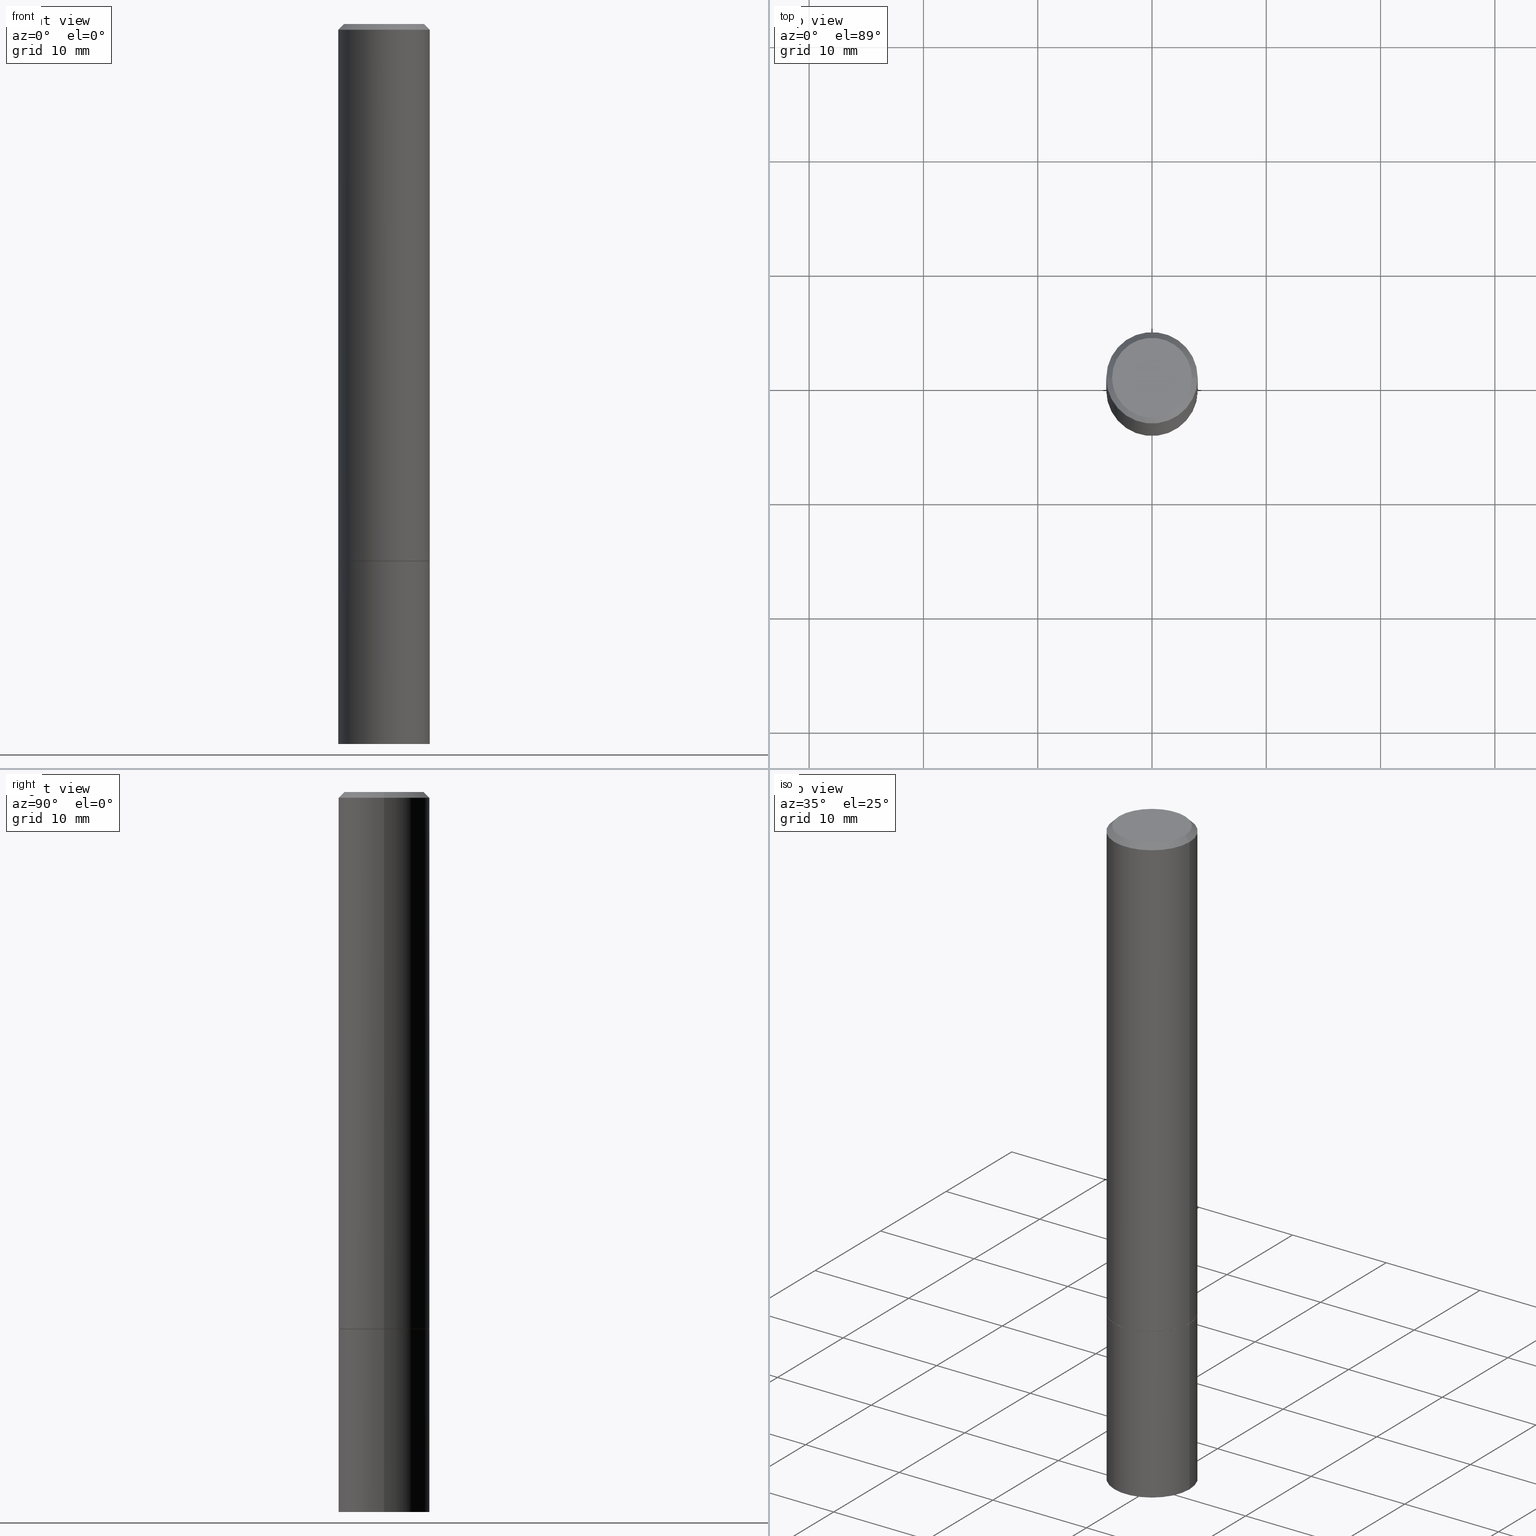
[diagram: canonical four-view strip — front | top / right | iso, engineering-drawing reading convention]
A machine part, canonical four-view strip (front | top / right | iso — engineering-drawing reading convention). The complete STEP part file that produces these views, byte-faithful:
ISO-10303-21;
HEADER;
FILE_DESCRIPTION (( 'STEP AP203' ),
    '1' );
FILE_NAME ('49835.STEP',
    '2024-02-29T01:43:07',
    ( '' ),
    ( '' ),
    'SwSTEP 2.0',
    'SolidWorks 2023',
    '' );
FILE_SCHEMA (( 'CONFIG_CONTROL_DESIGN' ));
ENDSEC;

DATA;
#1 = DATE_AND_TIME ( #147, #324 ) ;
#2 = PRODUCT_RELATED_PRODUCT_CATEGORY ( 'detail', '', ( #148 ) ) ;
#3 = PERSON_AND_ORGANIZATION_ROLE ( 'design_supplier' ) ;
#4 = ORIENTED_EDGE ( 'NONE', *, *, #348, .T. ) ;
#5 = VECTOR ( 'NONE', #64, 39.37007874015748854 ) ;
#6 = CARTESIAN_POINT ( 'NONE',  ( 4.890937612370281041E-31, -6.982962677686302702E-17, -0.02000000000000003511 ) ) ;
#7 = DIRECTION ( 'NONE',  ( -2.445468806185136597E-29, 3.491481338843145583E-15, 1.000000000000000000 ) ) ;
#8 = ORIENTED_EDGE ( 'NONE', *, *, #253, .F. ) ;
#9 = CARTESIAN_POINT ( 'NONE',  ( 6.065496279980994755E-29, -8.659921164732655335E-15, -2.480300000000000171 ) ) ;
#10 = CIRCLE ( 'NONE', #143, 0.1575000000000000011 ) ;
#11 = EDGE_CURVE ( 'NONE', #80, #142, #336, .T. ) ;
#12 = ORGANIZATION ( 'UNSPECIFIED', 'UNSPECIFIED', '' ) ;
#13 = CYLINDRICAL_SURFACE ( 'NONE', #55, 0.1574999999999998901 ) ;
#14 = ORIENTED_EDGE ( 'NONE', *, *, #62, .T. ) ;
#15 = CARTESIAN_POINT ( 'NONE',  ( 0.1574999999999998346, -1.150358061425878091E-15, -0.02000000000000003511 ) ) ;
#16 = DIRECTION ( 'NONE',  ( -2.445468806185136597E-29, 3.491481338843145583E-15, 1.000000000000000000 ) ) ;
#17 = CARTESIAN_POINT ( 'NONE',  ( 0.1574999999999998901, -1.099816621735586297E-15, 7.679978421878593829E-30 ) ) ;
#18 = CARTESIAN_POINT ( 'NONE',  ( -0.1574999999999998346, 1.029986994958722604E-15, -0.02000000000000003511 ) ) ;
#19 = EDGE_LOOP ( 'NONE', ( #67, #227 ) ) ;
#20 = PLANE ( 'NONE',  #112 ) ;
#21 = VECTOR ( 'NONE', #203, 39.37007874015748143 ) ;
#22 = APPROVAL_PERSON_ORGANIZATION ( #114, #286, #26 ) ;
#23 = ORIENTED_EDGE ( 'NONE', *, *, #316, .T. ) ;
#24 = AXIS2_PLACEMENT_3D ( 'NONE', #104, #16, #271 ) ;
#25 = ADVANCED_FACE ( 'NONE', ( #198 ), #333, .T. ) ;
#26 = APPROVAL_ROLE ( '' ) ;
#27 = CIRCLE ( 'NONE', #313, 0.1575000000000000011 ) ;
#28 = LOCAL_TIME ( 20, 43, 7.000000000000000000, #171 ) ;
#29 = CARTESIAN_POINT ( 'NONE',  ( 1.099816621735647434E-15, 0.1574999999999913136, -2.480300000000001059 ) ) ;
#30 = DIRECTION ( 'NONE',  ( -2.445468806185136597E-29, 3.491481338843145583E-15, 1.000000000000000000 ) ) ;
#31 = CC_DESIGN_PERSON_AND_ORGANIZATION_ASSIGNMENT ( #196, #308, ( #81 ) ) ;
#32 = VERTEX_POINT ( 'NONE', #229 ) ;
#33 = PERSON ( 'UNSPECIFIED', 'UNSPECIFIED', 'UNSPECIFIED', ('UNSPECIFIED'), ('UNSPECIFIED'), ('UNSPECIFIED') ) ;
#34 = DIRECTION ( 'NONE',  ( -2.445468806185136597E-29, 3.491481338843145583E-15, 1.000000000000000000 ) ) ;
#35 = ORIENTED_EDGE ( 'NONE', *, *, #46, .F. ) ;
#36 = AXIS2_PLACEMENT_3D ( 'NONE', #356, #214, #194 ) ;
#37 = CARTESIAN_POINT ( 'NONE',  ( 4.525095478964977394E-29, -6.460637069395357576E-15, -1.850400000000000267 ) ) ;
#38 = ORIENTED_EDGE ( 'NONE', *, *, #235, .T. ) ;
#39 = ADVANCED_FACE ( 'NONE', ( #290 ), #179, .T. ) ;
#40 = CARTESIAN_POINT ( 'NONE',  ( 0.000000000000000000, 0.000000000000000000, 0.000000000000000000 ) ) ;
#41 = EDGE_LOOP ( 'NONE', ( #161, #297, #130, #119 ) ) ;
#42 = CARTESIAN_POINT ( 'NONE',  ( 0.000000000000000000, 0.000000000000000000, 0.000000000000000000 ) ) ;
#43 = CIRCLE ( 'NONE', #36, 0.1374999999999997891 ) ;
#44 = LOCAL_TIME ( 20, 43, 7.000000000000000000, #172 ) ;
#45 = DIRECTION ( 'NONE',  ( 1.000000000000000000, -6.982962677686265922E-15, 4.876176775795935232E-29 ) ) ;
#46 = EDGE_CURVE ( 'NONE', #100, #232, #320, .T. ) ;
#47 = DIRECTION ( 'NONE',  ( 1.000000000000000000, -6.982962677686266711E-15, 4.876176775795935793E-29 ) ) ;
#48 = DIRECTION ( 'NONE',  ( 1.000000000000000000, -6.982962677686267499E-15, 0.000000000000000000 ) ) ;
#49 = CLOSED_SHELL ( 'NONE', ( #224, #66, #311, #25 ) ) ;
#50 = AXIS2_PLACEMENT_3D ( 'NONE', #223, #144, #248 ) ;
#51 = PERSON_AND_ORGANIZATION_ROLE ( 'design_owner' ) ;
#52 = CC_DESIGN_PERSON_AND_ORGANIZATION_ASSIGNMENT ( #84, #3, ( #285 ) ) ;
#53 = PERSON_AND_ORGANIZATION ( #33, #12 ) ;
#54 = SECURITY_CLASSIFICATION_LEVEL ( 'unclassified' ) ;
#55 = AXIS2_PLACEMENT_3D ( 'NONE', #233, #351, #47 ) ;
#56 = COORDINATED_UNIVERSAL_TIME_OFFSET ( 5, 0, .BEHIND. ) ;
#57 = EDGE_CURVE ( 'NONE', #315, #289, #288, .T. ) ;
#58 = APPLICATION_PROTOCOL_DEFINITION ( 'international standard', 'config_control_design', 1994, #266 ) ;
#59 = SHAPE_DEFINITION_REPRESENTATION ( #258, #334 ) ;
#60 = AXIS2_PLACEMENT_3D ( 'NONE', #273, #328, #300 ) ;
#61 = DIRECTION ( 'NONE',  ( 1.000000000000000000, -6.982962677686265922E-15, 0.000000000000000000 ) ) ;
#62 = EDGE_CURVE ( 'NONE', #234, #70, #343, .T. ) ;
#63 = FACE_OUTER_BOUND ( 'NONE', #264, .T. ) ;
#64 = DIRECTION ( 'NONE',  ( 0.7071067811865232589, -2.468850131082003836E-15, 0.7071067811865715536 ) ) ;
#65 = DIRECTION ( 'NONE',  ( -1.000000000000000000, 6.982962677686265922E-15, -4.876176775795935793E-29 ) ) ;
#66 = ADVANCED_FACE ( 'NONE', ( #152 ), #126, .T. ) ;
#67 = ORIENTED_EDGE ( 'NONE', *, *, #128, .F. ) ;
#68 = CIRCLE ( 'NONE', #256, 0.1574999999999998346 ) ;
#69 = DIRECTION ( 'NONE',  ( 2.445468806185136597E-29, -3.491481338843145583E-15, -1.000000000000000000 ) ) ;
#70 = VERTEX_POINT ( 'NONE', #236 ) ;
#71 = CARTESIAN_POINT ( 'NONE',  ( 1.099816621735631854E-15, 0.1574999999999935341, -1.850400000000000489 ) ) ;
#72 = ORIENTED_EDGE ( 'NONE', *, *, #316, .F. ) ;
#73 = CARTESIAN_POINT ( 'NONE',  ( -0.1374999999999997891, 9.950721815702915469E-16, 4.268512490093574228E-18 ) ) ;
#74 = ORIENTED_EDGE ( 'NONE', *, *, #276, .F. ) ;
#75 = ADVANCED_FACE ( 'NONE', ( #352 ), #150, .T. ) ;
#76 = FACE_OUTER_BOUND ( 'NONE', #302, .T. ) ;
#77 = CARTESIAN_POINT ( 'NONE',  ( 0.1374999999999997891, -1.046838268059731308E-15, 4.268512490107428597E-18 ) ) ;
#78 = ORIENTED_EDGE ( 'NONE', *, *, #276, .T. ) ;
#79 = DIRECTION ( 'NONE',  ( 2.438088387897960049E-29, -3.491481338843145188E-15, -1.000000000000000000 ) ) ;
#80 = VERTEX_POINT ( 'NONE', #153 ) ;
#81 = PRODUCT_DEFINITION ( 'UNKNOWN', '', #285, #85 ) ;
#82 = AXIS2_PLACEMENT_3D ( 'NONE', #6, #120, #61 ) ;
#83 = AXIS2_PLACEMENT_3D ( 'NONE', #71, #103, #160 ) ;
#84 = PERSON_AND_ORGANIZATION ( #33, #12 ) ;
#85 = DESIGN_CONTEXT ( 'detailed design', #277, 'design' ) ;
#86 = DATE_TIME_ROLE ( 'creation_date' ) ;
#87 = CARTESIAN_POINT ( 'NONE',  ( -0.1574999999999998901, 1.119104808822157012E-15, -7.747322767151471379E-30 ) ) ;
#88 = VERTEX_POINT ( 'NONE', #158 ) ;
#89 = CIRCLE ( 'NONE', #82, 0.1574999999999998346 ) ;
#90 = CALENDAR_DATE ( 2024, 28, 2 ) ;
#91 = CARTESIAN_POINT ( 'NONE',  ( 0.000000000000000000, 0.000000000000000000, 0.000000000000000000 ) ) ;
#92 = DIRECTION ( 'NONE',  ( 1.000000000000000000, -6.982962677686261977E-15, 0.000000000000000000 ) ) ;
#93 = DIRECTION ( 'NONE',  ( -2.445468806185136877E-29, 3.491481338843145188E-15, 1.000000000000000000 ) ) ;
#94 = AXIS2_PLACEMENT_3D ( 'NONE', #323, #244, #107 ) ;
#95 = DIRECTION ( 'NONE',  ( 1.000000000000000000, -6.982962677686265922E-15, 4.876176775795935793E-29 ) ) ;
#96 = ORIENTED_EDGE ( 'NONE', *, *, #253, .T. ) ;
#97 = DIRECTION ( 'NONE',  ( -2.445468806185136597E-29, 3.491481338843145583E-15, 1.000000000000000000 ) ) ;
#98 = ORIENTED_EDGE ( 'NONE', *, *, #304, .F. ) ;
#99 = CARTESIAN_POINT ( 'NONE',  ( 0.1565000000000000002, -7.553470728453258253E-15, -1.850400000000000267 ) ) ;
#100 = VERTEX_POINT ( 'NONE', #99 ) ;
#101 = AXIS2_PLACEMENT_3D ( 'NONE', #91, #280, #145 ) ;
#102 =( CONVERSION_BASED_UNIT ( 'INCH', #109 ) LENGTH_UNIT ( ) NAMED_UNIT ( #115 ) );
#103 = DIRECTION ( 'NONE',  ( 2.438088387897960049E-29, -3.491481338843145188E-15, -1.000000000000000000 ) ) ;
#104 = CARTESIAN_POINT ( 'NONE',  ( 4.525095478964977394E-29, -6.460637069395357576E-15, -1.850400000000000267 ) ) ;
#105 = ORIENTED_EDGE ( 'NONE', *, *, #128, .T. ) ;
#106 = VECTOR ( 'NONE', #215, 39.37007874015748854 ) ;
#107 = DIRECTION ( 'NONE',  ( 1.000000000000000000, -6.982962677686268288E-15, 0.000000000000000000 ) ) ;
#108 = EDGE_LOOP ( 'NONE', ( #212, #23 ) ) ;
#109 = LENGTH_MEASURE_WITH_UNIT ( LENGTH_MEASURE( 0.02539999999999999897 ), #274 );
#110 = ADVANCED_FACE ( 'NONE', ( #210 ), #344, .T. ) ;
#111 = PERSON_AND_ORGANIZATION ( #33, #12 ) ;
#112 = AXIS2_PLACEMENT_3D ( 'NONE', #135, #79, #357 ) ;
#113 = APPROVAL_STATUS ( 'not_yet_approved' ) ;
#114 = PERSON_AND_ORGANIZATION ( #33, #12 ) ;
#115 = DIMENSIONAL_EXPONENTS ( 1.000000000000000000, 0.000000000000000000, 0.000000000000000000, 0.000000000000000000, 0.000000000000000000, 0.000000000000000000, 0.000000000000000000 ) ;
#116 = COORDINATED_UNIVERSAL_TIME_OFFSET ( 5, 0, .BEHIND. ) ;
#117 = AXIS2_PLACEMENT_3D ( 'NONE', #29, #228, #65 ) ;
#118 = PERSON_AND_ORGANIZATION ( #33, #12 ) ;
#119 = ORIENTED_EDGE ( 'NONE', *, *, #178, .F. ) ;
#120 = DIRECTION ( 'NONE',  ( -2.445468806185136597E-29, 3.491481338843145583E-15, 1.000000000000000000 ) ) ;
#121 = CC_DESIGN_PERSON_AND_ORGANIZATION_ASSIGNMENT ( #118, #51, ( #148 ) ) ;
#122 = APPROVAL_DATE_TIME ( #199, #286 ) ;
#123 = LINE ( 'NONE', #207, #360 ) ;
#124 = ORIENTED_EDGE ( 'NONE', *, *, #167, .T. ) ;
#125 = AXIS2_PLACEMENT_3D ( 'NONE', #131, #69, #318 ) ;
#126 = PLANE ( 'NONE',  #117 ) ;
#127 = ORIENTED_EDGE ( 'NONE', *, *, #11, .T. ) ;
#128 = EDGE_CURVE ( 'NONE', #32, #315, #10, .T. ) ;
#129 = CARTESIAN_POINT ( 'NONE',  ( 4.525095478964976833E-29, -6.460637069395356787E-15, -1.850400000000000045 ) ) ;
#130 = ORIENTED_EDGE ( 'NONE', *, *, #309, .T. ) ;
#131 = CARTESIAN_POINT ( 'NONE',  ( 4.890937612370281041E-31, -6.982962677686302702E-17, -0.02000000000000003511 ) ) ;
#132 = CARTESIAN_POINT ( 'NONE',  ( -0.1575000000000000011, -6.441174308241848063E-15, -1.850400000000000267 ) ) ;
#133 = FACE_OUTER_BOUND ( 'NONE', #237, .T. ) ;
#134 = EDGE_CURVE ( 'NONE', #32, #88, #123, .T. ) ;
#135 = CARTESIAN_POINT ( 'NONE',  ( 9.601573681818600950E-16, 0.1374999999999997891, -4.779444278458816091E-16 ) ) ;
#136 = ORIENTED_EDGE ( 'NONE', *, *, #348, .F. ) ;
#137 = DIRECTION ( 'NONE',  ( -2.445468806185136597E-29, 3.491481338843145583E-15, 1.000000000000000000 ) ) ;
#138 = CLOSED_SHELL ( 'NONE', ( #327, #110, #39, #211, #200, #75, #149, #249 ) ) ;
#139 = APPROVAL_PERSON_ORGANIZATION ( #111, #359, #220 ) ;
#140 = CC_DESIGN_PERSON_AND_ORGANIZATION_ASSIGNMENT ( #53, #338, ( #169 ) ) ;
#141 = LINE ( 'NONE', #189, #106 ) ;
#142 = VERTEX_POINT ( 'NONE', #292 ) ;
#143 = AXIS2_PLACEMENT_3D ( 'NONE', #9, #7, #92 ) ;
#144 = DIRECTION ( 'NONE',  ( 0.000000000000000000, 0.000000000000000000, 1.000000000000000000 ) ) ;
#145 = DIRECTION ( 'NONE',  ( 1.000000000000000000, -6.982962677686265922E-15, 4.876176775795935232E-29 ) ) ;
#146 = EDGE_CURVE ( 'NONE', #100, #159, #314, .T. ) ;
#147 = CALENDAR_DATE ( 2024, 28, 2 ) ;
#148 = PRODUCT ( '49835', '49835', '', ( #255 ) ) ;
#149 = ADVANCED_FACE ( 'NONE', ( #63 ), #267, .F. ) ;
#150 = CONICAL_SURFACE ( 'NONE', #168, 0.1565000000000000002, 0.7853981633974141952 ) ;
#151 = LOCAL_TIME ( 20, 43, 7.000000000000000000, #56 ) ;
#152 = FACE_OUTER_BOUND ( 'NONE', #19, .T. ) ;
#153 = CARTESIAN_POINT ( 'NONE',  ( -0.1575000000000000011, -2.144382798594528569E-15, -1.849400000000000155 ) ) ;
#154 = ORIENTED_EDGE ( 'NONE', *, *, #205, .F. ) ;
#155 = VECTOR ( 'NONE', #349, 39.37007874015748143 ) ;
#156 = FACE_OUTER_BOUND ( 'NONE', #41, .T. ) ;
#157 = ORIENTED_EDGE ( 'NONE', *, *, #167, .F. ) ;
#158 = CARTESIAN_POINT ( 'NONE',  ( 0.1575000000000000011, -7.560453691130944267E-15, -1.850400000000000267 ) ) ;
#159 = VERTEX_POINT ( 'NONE', #206 ) ;
#160 = DIRECTION ( 'NONE',  ( -1.000000000000000000, 6.982962677686265922E-15, -4.876176775795935793E-29 ) ) ;
#161 = ORIENTED_EDGE ( 'NONE', *, *, #11, .F. ) ;
#162 = LINE ( 'NONE', #18, #261 ) ;
#163 = AXIS2_PLACEMENT_3D ( 'NONE', #42, #269, #45 ) ;
#164 = DIRECTION ( 'NONE',  ( -0.7071067811865472397, 2.468850131082253905E-15, -0.7071067811865477948 ) ) ;
#165 = DIRECTION ( 'NONE',  ( -2.445468806185136597E-29, 3.491481338843145583E-15, 1.000000000000000000 ) ) ;
#166 = ORIENTED_EDGE ( 'NONE', *, *, #309, .F. ) ;
#167 = EDGE_CURVE ( 'NONE', #70, #142, #68, .T. ) ;
#168 = AXIS2_PLACEMENT_3D ( 'NONE', #37, #30, #185 ) ;
#169 = SECURITY_CLASSIFICATION ( '', '', #54 ) ;
#170 = UNCERTAINTY_MEASURE_WITH_UNIT (LENGTH_MEASURE( 1.000000000000000082E-05 ), #102, 'distance_accuracy_value', 'NONE');
#171 = COORDINATED_UNIVERSAL_TIME_OFFSET ( 5, 0, .BEHIND. ) ;
#172 = COORDINATED_UNIVERSAL_TIME_OFFSET ( 5, 0, .BEHIND. ) ;
#173 = DATE_AND_TIME ( #90, #44 ) ;
#174 = EDGE_CURVE ( 'NONE', #88, #289, #346, .T. ) ;
#175 = VECTOR ( 'NONE', #365, 39.37007874015748143 ) ;
#176 = CALENDAR_DATE ( 2024, 28, 2 ) ;
#177 = PERSON_AND_ORGANIZATION ( #33, #12 ) ;
#178 = EDGE_CURVE ( 'NONE', #142, #70, #89, .T. ) ;
#179 = CONICAL_SURFACE ( 'NONE', #125, 0.1574999999999998346, 0.7853981633974479459 ) ;
#180 = CARTESIAN_POINT ( 'NONE',  ( 4.525095478964977394E-29, -6.460637069395357576E-15, -1.850400000000000267 ) ) ;
#181 = CARTESIAN_POINT ( 'NONE',  ( 4.890937612370281041E-31, -6.982962677686302702E-17, -0.02000000000000003511 ) ) ;
#182 = ORIENTED_EDGE ( 'NONE', *, *, #174, .F. ) ;
#183 = DIRECTION ( 'NONE',  ( 1.000000000000000000, -6.982962677686268288E-15, 0.000000000000000000 ) ) ;
#184 = AXIS2_PLACEMENT_3D ( 'NONE', #303, #192, #48 ) ;
#185 = DIRECTION ( 'NONE',  ( 1.000000000000000000, -6.982962677686267499E-15, 0.000000000000000000 ) ) ;
#186 = APPROVAL_PERSON_ORGANIZATION ( #306, #265, #225 ) ;
#187 = CARTESIAN_POINT ( 'NONE',  ( 4.525095478964977394E-29, -6.460637069395357576E-15, -1.850400000000000267 ) ) ;
#188 = CC_DESIGN_DATE_AND_TIME_ASSIGNMENT ( #1, #86, ( #81 ) ) ;
#189 = CARTESIAN_POINT ( 'NONE',  ( -0.1565000000000000002, -5.348637687930800981E-15, -1.850400000000000267 ) ) ;
#190 = ORIENTED_EDGE ( 'NONE', *, *, #146, .T. ) ;
#191 = ORIENTED_EDGE ( 'NONE', *, *, #193, .F. ) ;
#192 = DIRECTION ( 'NONE',  ( -2.445468806185136597E-29, 3.491481338843145583E-15, 1.000000000000000000 ) ) ;
#193 = EDGE_CURVE ( 'NONE', #289, #88, #27, .T. ) ;
#194 = DIRECTION ( 'NONE',  ( 1.000000000000000000, -6.982962677686267499E-15, 4.876173381029107889E-29 ) ) ;
#195 = DIRECTION ( 'NONE',  ( 1.000000000000000000, -6.982962677686267499E-15, 4.876173381029107889E-29 ) ) ;
#196 = PERSON_AND_ORGANIZATION ( #33, #12 ) ;
#197 = APPROVAL_STATUS ( 'not_yet_approved' ) ;
#198 = FACE_OUTER_BOUND ( 'NONE', #204, .T. ) ;
#199 = DATE_AND_TIME ( #176, #151 ) ;
#200 = ADVANCED_FACE ( 'NONE', ( #156 ), #13, .T. ) ;
#201 = DIRECTION ( 'NONE',  ( 1.000000000000000000, -6.982962677686267499E-15, 0.000000000000000000 ) ) ;
#202 = CIRCLE ( 'NONE', #230, 0.1374999999999997891 ) ;
#203 = DIRECTION ( 'NONE',  ( 0.7071067811865472397, -7.319954787623254468E-15, -0.7071067811865477948 ) ) ;
#204 = EDGE_LOOP ( 'NONE', ( #250, #358, #268, #191 ) ) ;
#205 = EDGE_CURVE ( 'NONE', #80, #159, #339, .T. ) ;
#206 = CARTESIAN_POINT ( 'NONE',  ( 0.1575000000000000011, -7.556962209792101260E-15, -1.849400000000000155 ) ) ;
#207 = CARTESIAN_POINT ( 'NONE',  ( 0.1575000000000000011, -1.099816621735586889E-15, 7.679978421878598033E-30 ) ) ;
#208 = ORIENTED_EDGE ( 'NONE', *, *, #134, .F. ) ;
#209 = AXIS2_PLACEMENT_3D ( 'NONE', #312, #317, #183 ) ;
#210 = FACE_OUTER_BOUND ( 'NONE', #243, .T. ) ;
#211 = ADVANCED_FACE ( 'NONE', ( #322 ), #221, .T. ) ;
#212 = ORIENTED_EDGE ( 'NONE', *, *, #304, .T. ) ;
#213 = CARTESIAN_POINT ( 'NONE',  ( -1.043851414335219820E-46, 1.490343170380447200E-32, 4.268512490100411279E-18 ) ) ;
#214 = DIRECTION ( 'NONE',  ( -2.445468806185136597E-29, 3.491481338843145583E-15, 1.000000000000000000 ) ) ;
#215 = DIRECTION ( 'NONE',  ( -0.7071067811865232589, 7.493145998870265808E-15, 0.7071067811865715536 ) ) ;
#216 = LOCAL_TIME ( 20, 43, 7.000000000000000000, #331 ) ;
#217 = FACE_OUTER_BOUND ( 'NONE', #305, .T. ) ;
#218 = DIRECTION ( 'NONE',  ( -2.445468806185136597E-29, 3.491481338843145583E-15, 1.000000000000000000 ) ) ;
#219 = ORIENTED_EDGE ( 'NONE', *, *, #57, .T. ) ;
#220 = APPROVAL_ROLE ( '' ) ;
#221 = CONICAL_SURFACE ( 'NONE', #60, 0.1574999999999998346, 0.7853981633974479459 ) ;
#222 = CALENDAR_DATE ( 2024, 28, 2 ) ;
#223 = CARTESIAN_POINT ( 'NONE',  ( 0.000000000000000000, 0.000000000000000000, 0.000000000000000000 ) ) ;
#224 = ADVANCED_FACE ( 'NONE', ( #217 ), #326, .T. ) ;
#225 = APPROVAL_ROLE ( '' ) ;
#226 = DATE_AND_TIME ( #283, #216 ) ;
#227 = ORIENTED_EDGE ( 'NONE', *, *, #341, .F. ) ;
#228 = DIRECTION ( 'NONE',  ( 2.438088387897960049E-29, -3.491481338843145188E-15, -1.000000000000000000 ) ) ;
#229 = CARTESIAN_POINT ( 'NONE',  ( 0.1575000000000000011, -9.759737786468242027E-15, -2.480300000000000171 ) ) ;
#230 = AXIS2_PLACEMENT_3D ( 'NONE', #213, #137, #195 ) ;
#231 = DIRECTION ( 'NONE',  ( -2.438088387897960049E-29, 3.491481338843145188E-15, 1.000000000000000000 ) ) ;
#232 = VERTEX_POINT ( 'NONE', #296 ) ;
#233 = CARTESIAN_POINT ( 'NONE',  ( 0.000000000000000000, 0.000000000000000000, 0.000000000000000000 ) ) ;
#234 = VERTEX_POINT ( 'NONE', #77 ) ;
#235 = EDGE_CURVE ( 'NONE', #353, #142, #162, .T. ) ;
#236 = CARTESIAN_POINT ( 'NONE',  ( 0.1574999999999998346, -1.150358061425878091E-15, -0.02000000000000003511 ) ) ;
#237 = EDGE_LOOP ( 'NONE', ( #340, #350 ) ) ;
#238 = CONICAL_SURFACE ( 'NONE', #184, 0.1565000000000000002, 0.7853981633974141952 ) ;
#239 = VECTOR ( 'NONE', #240, 39.37007874015748143 ) ;
#240 = DIRECTION ( 'NONE',  ( -2.445468806185136877E-29, 3.491481338843145188E-15, 1.000000000000000000 ) ) ;
#241 = CARTESIAN_POINT ( 'NONE',  ( -0.1575000000000000011, -6.441174308241848063E-15, -2.480300000000000171 ) ) ;
#242 = DIRECTION ( 'NONE',  ( 1.000000000000000000, -6.982962677686268288E-15, 0.000000000000000000 ) ) ;
#243 = EDGE_LOOP ( 'NONE', ( #4, #127, #157, #166 ) ) ;
#244 = DIRECTION ( 'NONE',  ( -2.445468806185136597E-29, 3.491481338843145583E-15, 1.000000000000000000 ) ) ;
#245 = CIRCLE ( 'NONE', #275, 0.1575000000000000011 ) ;
#246 = CC_DESIGN_APPROVAL ( #359, ( #81 ) ) ;
#247 = DIRECTION ( 'NONE',  ( 1.000000000000000000, -6.982962677686261977E-15, 0.000000000000000000 ) ) ;
#248 = DIRECTION ( 'NONE',  ( 1.000000000000000000, 0.000000000000000000, 0.000000000000000000 ) ) ;
#249 = ADVANCED_FACE ( 'NONE', ( #361 ), #20, .F. ) ;
#250 = ORIENTED_EDGE ( 'NONE', *, *, #57, .F. ) ;
#251 =( NAMED_UNIT ( * ) SI_UNIT ( $, .STERADIAN. ) SOLID_ANGLE_UNIT ( ) );
#252 = CC_DESIGN_SECURITY_CLASSIFICATION ( #169, ( #285 ) ) ;
#253 = EDGE_CURVE ( 'NONE', #232, #100, #284, .T. ) ;
#254 = APPLICATION_PROTOCOL_DEFINITION ( 'international standard', 'config_control_design', 1994, #277 ) ;
#255 = MECHANICAL_CONTEXT ( 'NONE', #266, 'mechanical' ) ;
#256 = AXIS2_PLACEMENT_3D ( 'NONE', #181, #257, #321 ) ;
#257 = DIRECTION ( 'NONE',  ( -2.445468806185136597E-29, 3.491481338843145583E-15, 1.000000000000000000 ) ) ;
#258 = PRODUCT_DEFINITION_SHAPE ( 'NONE', 'NONE',  #81 ) ;
#259 = DIRECTION ( 'NONE',  ( -2.445468806185136597E-29, 3.491481338843145583E-15, 1.000000000000000000 ) ) ;
#260 = DIRECTION ( 'NONE',  ( 1.000000000000000000, -6.982962677686266711E-15, 4.876176775795935793E-29 ) ) ;
#261 = VECTOR ( 'NONE', #164, 39.37007874015748143 ) ;
#262 = CC_DESIGN_APPROVAL ( #265, ( #285 ) ) ;
#263 = CARTESIAN_POINT ( 'NONE',  ( 0.1565000000000000002, -7.553470728453258253E-15, -1.850400000000000267 ) ) ;
#264 = EDGE_LOOP ( 'NONE', ( #35, #8 ) ) ;
#265 = APPROVAL ( #278, 'UNSPECIFIED' ) ;
#266 = APPLICATION_CONTEXT ( 'configuration controlled 3d designs of mechanical parts and assemblies' ) ;
#267 = PLANE ( 'NONE',  #330 ) ;
#268 = ORIENTED_EDGE ( 'NONE', *, *, #134, .T. ) ;
#269 = DIRECTION ( 'NONE',  ( -2.445468806185136597E-29, 3.491481338843145583E-15, 1.000000000000000000 ) ) ;
#270 = AXIS2_PLACEMENT_3D ( 'NONE', #272, #218, #242 ) ;
#271 = DIRECTION ( 'NONE',  ( 1.000000000000000000, -6.982962677686267499E-15, 0.000000000000000000 ) ) ;
#272 = CARTESIAN_POINT ( 'NONE',  ( 4.522650010158792351E-29, -6.457145588056513780E-15, -1.849400000000000155 ) ) ;
#273 = CARTESIAN_POINT ( 'NONE',  ( 4.890937612370281041E-31, -6.982962677686302702E-17, -0.02000000000000003511 ) ) ;
#274 =( LENGTH_UNIT ( ) NAMED_UNIT ( * ) SI_UNIT ( $, .METRE. ) );
#275 = AXIS2_PLACEMENT_3D ( 'NONE', #301, #165, #247 ) ;
#276 = EDGE_CURVE ( 'NONE', #232, #80, #141, .T. ) ;
#277 = APPLICATION_CONTEXT ( 'configuration controlled 3d designs of mechanical parts and assemblies' ) ;
#278 = APPROVAL_STATUS ( 'not_yet_approved' ) ;
#279 = EDGE_LOOP ( 'NONE', ( #72, #14, #124, #293 ) ) ;
#280 = DIRECTION ( 'NONE',  ( -2.445468806185136597E-29, 3.491481338843145583E-15, 1.000000000000000000 ) ) ;
#281 = CC_DESIGN_PERSON_AND_ORGANIZATION_ASSIGNMENT ( #177, #335, ( #285 ) ) ;
#282 =( NAMED_UNIT ( * ) PLANE_ANGLE_UNIT ( ) SI_UNIT ( $, .RADIAN. ) );
#283 = CALENDAR_DATE ( 2024, 28, 2 ) ;
#284 = CIRCLE ( 'NONE', #24, 0.1565000000000000002 ) ;
#285 = PRODUCT_DEFINITION_FORMATION_WITH_SPECIFIED_SOURCE ( 'ANY', '', #148, .NOT_KNOWN. ) ;
#286 = APPROVAL ( #197, 'UNSPECIFIED' ) ;
#287 = DIRECTION ( 'NONE',  ( 1.000000000000000000, -6.982962677686268288E-15, 0.000000000000000000 ) ) ;
#288 = LINE ( 'NONE', #294, #155 ) ;
#289 = VERTEX_POINT ( 'NONE', #132 ) ;
#290 = FACE_OUTER_BOUND ( 'NONE', #279, .T. ) ;
#291 = ORIENTED_EDGE ( 'NONE', *, *, #62, .F. ) ;
#292 = CARTESIAN_POINT ( 'NONE',  ( -0.1574999999999998346, 1.029986994958722604E-15, -0.02000000000000003511 ) ) ;
#293 = ORIENTED_EDGE ( 'NONE', *, *, #235, .F. ) ;
#294 = CARTESIAN_POINT ( 'NONE',  ( -0.1575000000000000011, 1.119104808822157801E-15, -7.747322767151475583E-30 ) ) ;
#295 = ORIENTED_EDGE ( 'NONE', *, *, #46, .T. ) ;
#296 = CARTESIAN_POINT ( 'NONE',  ( -0.1565000000000000002, -5.343339233582579367E-15, -1.850400000000000267 ) ) ;
#297 = ORIENTED_EDGE ( 'NONE', *, *, #205, .T. ) ;
#298 = AXIS2_PLACEMENT_3D ( 'NONE', #40, #97, #260 ) ;
#299 =( GEOMETRIC_REPRESENTATION_CONTEXT ( 3 ) GLOBAL_UNCERTAINTY_ASSIGNED_CONTEXT ( ( #170 ) ) GLOBAL_UNIT_ASSIGNED_CONTEXT ( ( #102, #282, #251 ) ) REPRESENTATION_CONTEXT ( 'NONE', 'WORKASPACE' ) );
#300 = DIRECTION ( 'NONE',  ( -1.000000000000000000, 6.982962677686265922E-15, 0.000000000000000000 ) ) ;
#301 = CARTESIAN_POINT ( 'NONE',  ( 6.065496279980994755E-29, -8.659921164732655335E-15, -2.480300000000000171 ) ) ;
#302 = EDGE_LOOP ( 'NONE', ( #295, #78, #136, #362 ) ) ;
#303 = CARTESIAN_POINT ( 'NONE',  ( 4.525095478964977394E-29, -6.460637069395357576E-15, -1.850400000000000267 ) ) ;
#304 = EDGE_CURVE ( 'NONE', #353, #234, #202, .T. ) ;
#305 = EDGE_LOOP ( 'NONE', ( #105, #219, #182, #208 ) ) ;
#306 = PERSON_AND_ORGANIZATION ( #33, #12 ) ;
#307 = DATE_AND_TIME ( #222, #28 ) ;
#308 = PERSON_AND_ORGANIZATION_ROLE ( 'creator' ) ;
#309 = EDGE_CURVE ( 'NONE', #159, #70, #325, .T. ) ;
#310 = AXIS2_PLACEMENT_3D ( 'NONE', #187, #259, #201 ) ;
#311 = ADVANCED_FACE ( 'NONE', ( #133 ), #354, .F. ) ;
#312 = CARTESIAN_POINT ( 'NONE',  ( 4.525095478964977394E-29, -6.460637069395357576E-15, -1.850400000000000267 ) ) ;
#313 = AXIS2_PLACEMENT_3D ( 'NONE', #180, #34, #287 ) ;
#314 = LINE ( 'NONE', #263, #5 ) ;
#315 = VERTEX_POINT ( 'NONE', #241 ) ;
#316 = EDGE_CURVE ( 'NONE', #234, #353, #43, .T. ) ;
#317 = DIRECTION ( 'NONE',  ( -2.445468806185136597E-29, 3.491481338843145583E-15, 1.000000000000000000 ) ) ;
#318 = DIRECTION ( 'NONE',  ( -1.000000000000000000, 6.982962677686265922E-15, 0.000000000000000000 ) ) ;
#319 = EDGE_LOOP ( 'NONE', ( #74, #96, #190, #154 ) ) ;
#320 = CIRCLE ( 'NONE', #310, 0.1565000000000000002 ) ;
#321 = DIRECTION ( 'NONE',  ( 1.000000000000000000, -6.982962677686265922E-15, 0.000000000000000000 ) ) ;
#322 = FACE_OUTER_BOUND ( 'NONE', #345, .T. ) ;
#323 = CARTESIAN_POINT ( 'NONE',  ( 4.522650010158792351E-29, -6.457145588056513780E-15, -1.849400000000000155 ) ) ;
#324 = LOCAL_TIME ( 20, 43, 7.000000000000000000, #116 ) ;
#325 = LINE ( 'NONE', #17, #239 ) ;
#326 = CYLINDRICAL_SURFACE ( 'NONE', #163, 0.1575000000000000011 ) ;
#327 = ADVANCED_FACE ( 'NONE', ( #76 ), #238, .T. ) ;
#328 = DIRECTION ( 'NONE',  ( 2.445468806185136597E-29, -3.491481338843145583E-15, -1.000000000000000000 ) ) ;
#329 = ORIENTED_EDGE ( 'NONE', *, *, #178, .T. ) ;
#330 = AXIS2_PLACEMENT_3D ( 'NONE', #129, #231, #95 ) ;
#331 = COORDINATED_UNIVERSAL_TIME_OFFSET ( 5, 0, .BEHIND. ) ;
#332 = APPROVAL_DATE_TIME ( #307, #359 ) ;
#333 = CYLINDRICAL_SURFACE ( 'NONE', #101, 0.1575000000000000011 ) ;
#334 = ADVANCED_BREP_SHAPE_REPRESENTATION ( '49835', ( #337, #342, #50 ), #299 ) ;
#335 = PERSON_AND_ORGANIZATION_ROLE ( 'creator' ) ;
#336 = LINE ( 'NONE', #87, #175 ) ;
#337 = MANIFOLD_SOLID_BREP ( 'Body-Move/Copy2[1]', #49 ) ;
#338 = PERSON_AND_ORGANIZATION_ROLE ( 'classification_officer' ) ;
#339 = CIRCLE ( 'NONE', #270, 0.1575000000000000011 ) ;
#340 = ORIENTED_EDGE ( 'NONE', *, *, #174, .T. ) ;
#341 = EDGE_CURVE ( 'NONE', #315, #32, #245, .T. ) ;
#342 = MANIFOLD_SOLID_BREP ( 'Body-Move/Copy2[2]', #138 ) ;
#343 = LINE ( 'NONE', #15, #21 ) ;
#344 = CYLINDRICAL_SURFACE ( 'NONE', #298, 0.1574999999999998901 ) ;
#345 = EDGE_LOOP ( 'NONE', ( #291, #98, #38, #329 ) ) ;
#346 = CIRCLE ( 'NONE', #209, 0.1575000000000000011 ) ;
#347 = CC_DESIGN_APPROVAL ( #286, ( #169 ) ) ;
#348 = EDGE_CURVE ( 'NONE', #159, #80, #364, .T. ) ;
#349 = DIRECTION ( 'NONE',  ( -2.445468806185136877E-29, 3.491481338843145188E-15, 1.000000000000000000 ) ) ;
#350 = ORIENTED_EDGE ( 'NONE', *, *, #193, .T. ) ;
#351 = DIRECTION ( 'NONE',  ( -2.445468806185136597E-29, 3.491481338843145583E-15, 1.000000000000000000 ) ) ;
#352 = FACE_OUTER_BOUND ( 'NONE', #319, .T. ) ;
#353 = VERTEX_POINT ( 'NONE', #73 ) ;
#354 = PLANE ( 'NONE',  #83 ) ;
#355 = CC_DESIGN_DATE_AND_TIME_ASSIGNMENT ( #173, #366, ( #169 ) ) ;
#356 = CARTESIAN_POINT ( 'NONE',  ( -1.043851414335219820E-46, 1.490343170380447200E-32, 4.268512490100411279E-18 ) ) ;
#357 = DIRECTION ( 'NONE',  ( -1.000000000000000000, 6.982962677686265922E-15, -4.876176775795935793E-29 ) ) ;
#358 = ORIENTED_EDGE ( 'NONE', *, *, #341, .T. ) ;
#359 = APPROVAL ( #113, 'UNSPECIFIED' ) ;
#360 = VECTOR ( 'NONE', #93, 39.37007874015748143 ) ;
#361 = FACE_OUTER_BOUND ( 'NONE', #108, .T. ) ;
#362 = ORIENTED_EDGE ( 'NONE', *, *, #146, .F. ) ;
#363 = APPROVAL_DATE_TIME ( #226, #265 ) ;
#364 = CIRCLE ( 'NONE', #94, 0.1575000000000000011 ) ;
#365 = DIRECTION ( 'NONE',  ( -2.445468806185136877E-29, 3.491481338843145188E-15, 1.000000000000000000 ) ) ;
#366 = DATE_TIME_ROLE ( 'classification_date' ) ;
ENDSEC;
END-ISO-10303-21;
